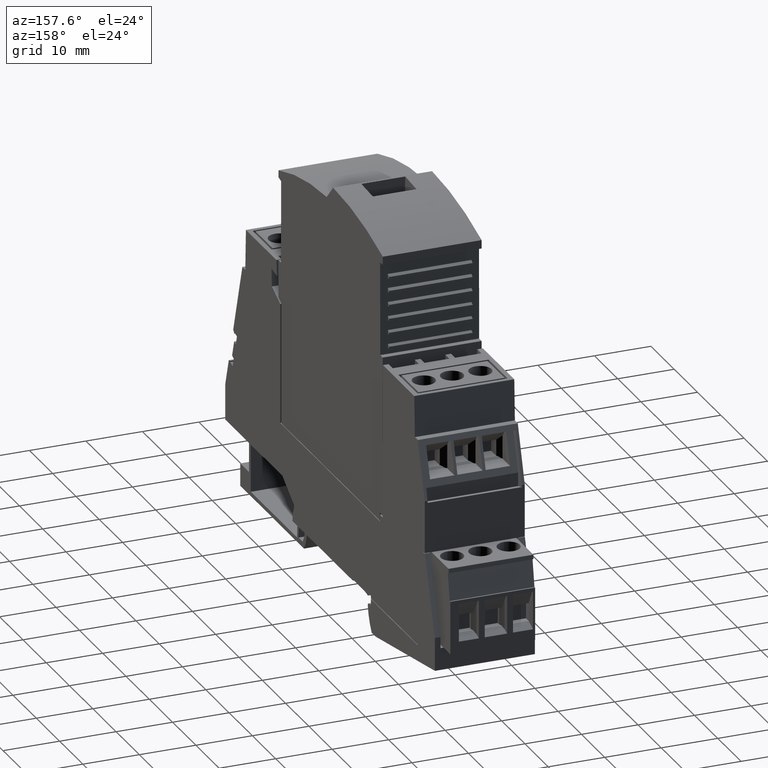
[diagram: clean part render]
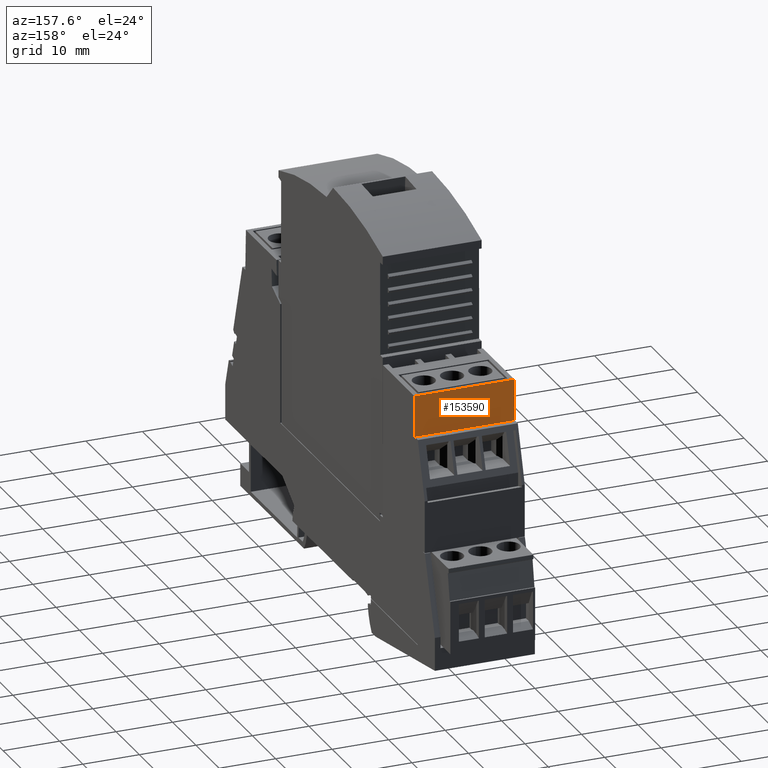
[diagram: same view with one face highlighted and labeled with its STEP entity id]
A machine part, auxiliary view. The second image highlights one B-rep face of the part: STEP entity #153590.
In plain terms, the highlighted planar face has unit normal (-0, -0.9994, -0.0349).
Its self-contained STEP definition (entity closure, byte-faithful):
#71230=CARTESIAN_POINT('',(32.9381757205978,57.8062740524413,
-33.5000000000924));
#71240=VERTEX_POINT('',#71230);
#71270=CARTESIAN_POINT('',(31.7725150867391,24.4261208993388,
-33.5000000000924));
#71280=DIRECTION('',(-0.034899496702501,-0.999390827019096,0.));
#71290=VECTOR('',#71280,1.);
#71300=LINE('',#71270,#71290);
#71310=CARTESIAN_POINT('',(33.1913512994131,65.0562740524421,
-33.5000000000924));
#71320=VERTEX_POINT('',#71310);
#71330=EDGE_CURVE('',#71320,#71240,#71300,.T.);
#80270=CARTESIAN_POINT('',(33.1913512994131,65.0562740524421,
-41.3000000000924));
#80280=DIRECTION('',(0.,0.,1.));
#80290=VECTOR('',#80280,1.);
#80300=LINE('',#80270,#80290);
#80310=CARTESIAN_POINT('',(33.1913512994131,65.0562740524421,
-51.2000000000924));
#80320=VERTEX_POINT('',#80310);
#80330=EDGE_CURVE('',#80320,#71320,#80300,.T.);
#90370=CARTESIAN_POINT('',(31.7725150867391,24.4261208993388,
-51.2000000000924));
#90380=DIRECTION('',(-0.034899496702501,-0.999390827019096,0.));
#90390=VECTOR('',#90380,1.);
#90400=LINE('',#90370,#90390);
#90410=CARTESIAN_POINT('',(32.9381757205978,57.8062740524413,
-51.2000000000924));
#90420=VERTEX_POINT('',#90410);
#90430=EDGE_CURVE('',#80320,#90420,#90400,.T.);
#105680=CARTESIAN_POINT('',(32.9381757205978,57.8062740524411,
-33.5000000000924));
#105690=DIRECTION('',(0.,0.,-1.));
#105700=VECTOR('',#105690,1.);
#105710=LINE('',#105680,#105700);
#105720=EDGE_CURVE('',#71240,#90420,#105710,.T.);
#153480=CARTESIAN_POINT('',(32.9381757205978,57.8062740524411,
-33.5000000000924));
#153490=DIRECTION('',(0.999390827019096,-0.034899496702501,0.));
#153500=DIRECTION('',(-0.034899496702501,-0.999390827019096,0.));
#153510=AXIS2_PLACEMENT_3D('',#153480,#153490,#153500);
#153520=PLANE('',#153510);
#153530=ORIENTED_EDGE('',*,*,#71330,.F.);
#153540=ORIENTED_EDGE('',*,*,#105720,.F.);
#153550=ORIENTED_EDGE('',*,*,#90430,.T.);
#153560=ORIENTED_EDGE('',*,*,#80330,.F.);
#153570=EDGE_LOOP('',(#153560,#153550,#153540,#153530));
#153580=FACE_OUTER_BOUND('',#153570,.T.);
#153590=ADVANCED_FACE('',(#153580),#153520,.F.);